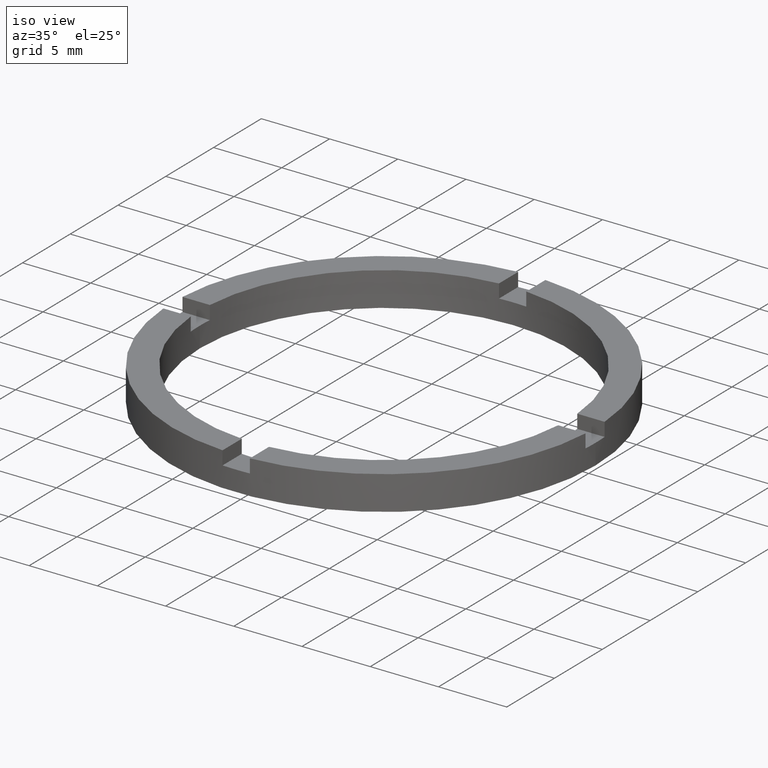
[diagram: clean part render]
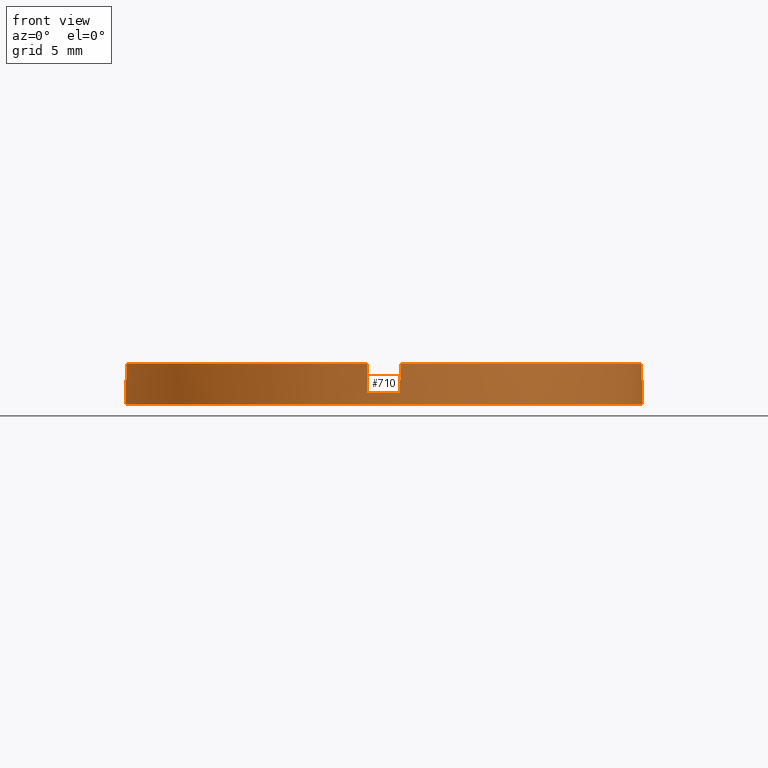
[diagram: tour spotlight — one face highlighted and labeled with its STEP entity id]
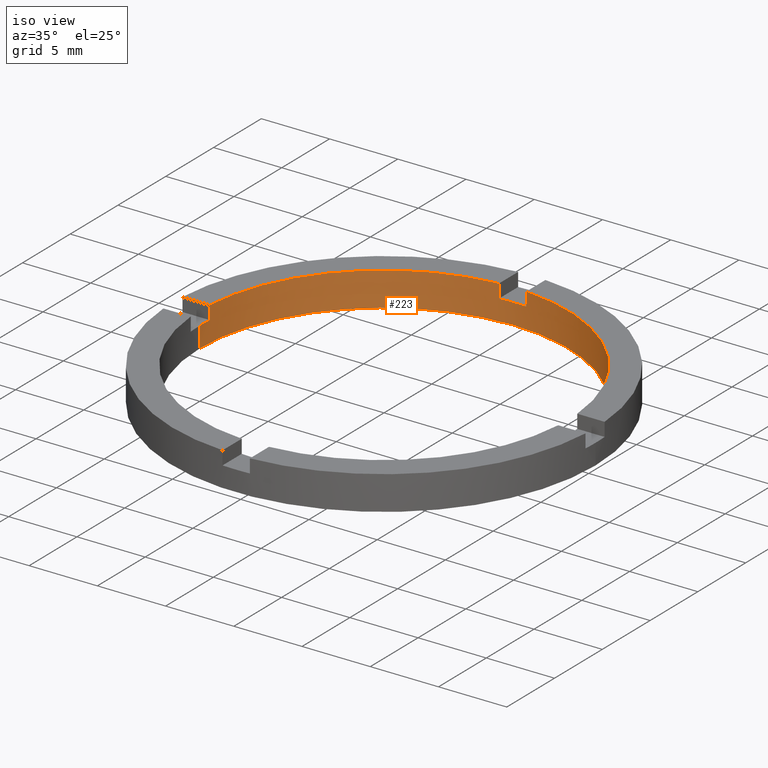
[diagram: tour spotlight — one face highlighted and labeled with its STEP entity id]
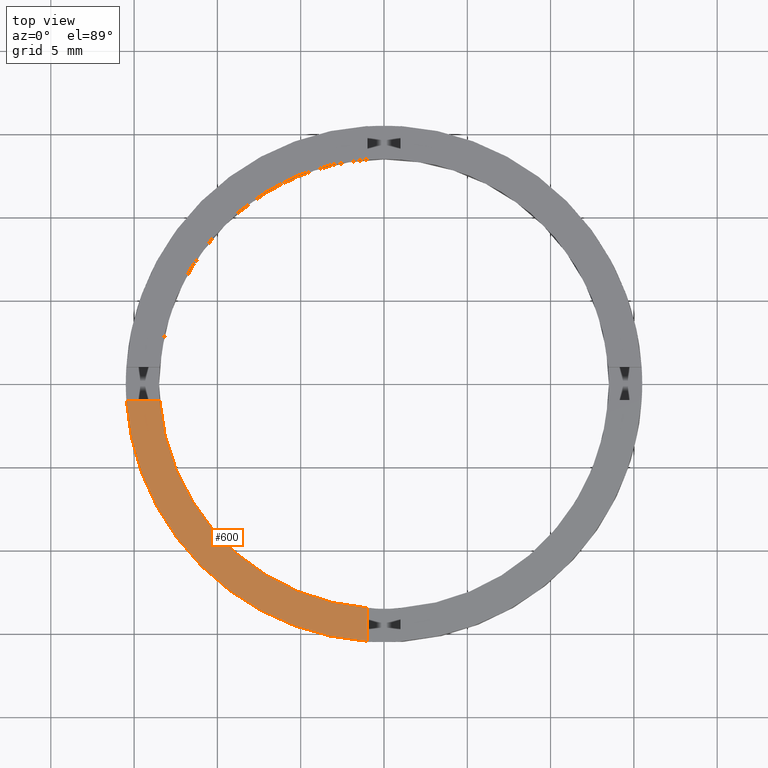
[diagram: tour spotlight — one face highlighted and labeled with its STEP entity id]
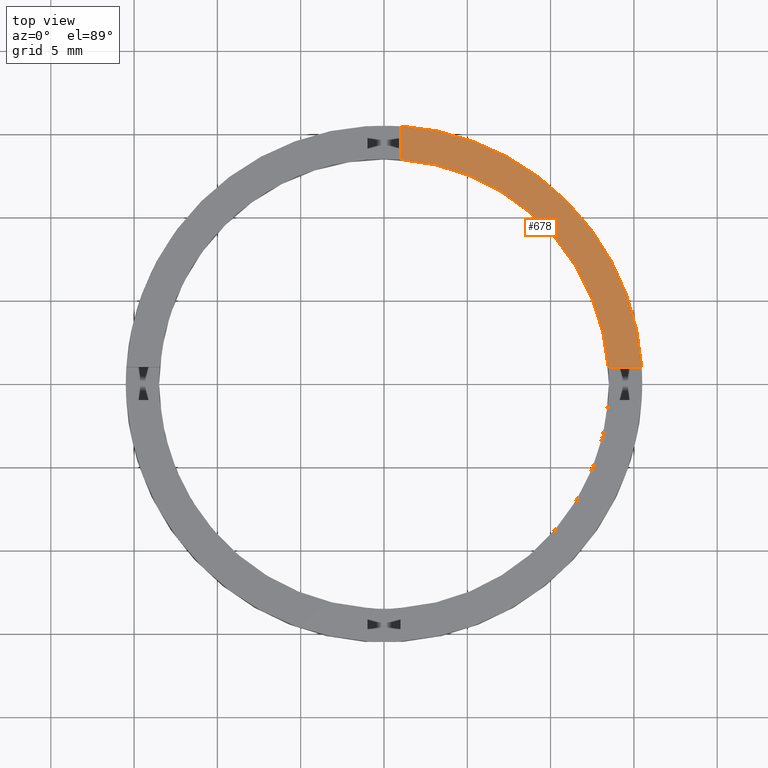
[diagram: tour spotlight — one face highlighted and labeled with its STEP entity id]
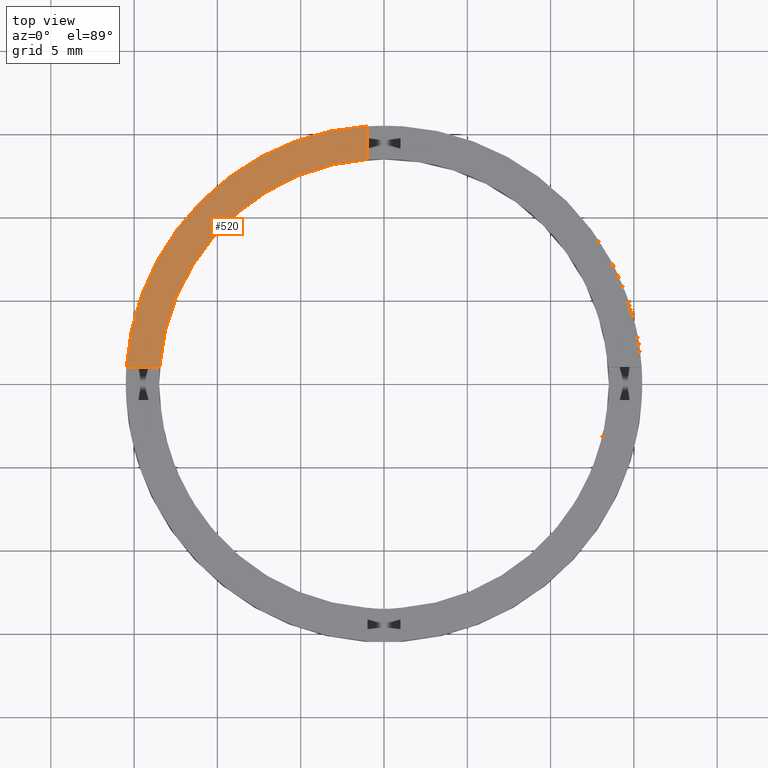
[diagram: tour spotlight — one face highlighted and labeled with its STEP entity id]
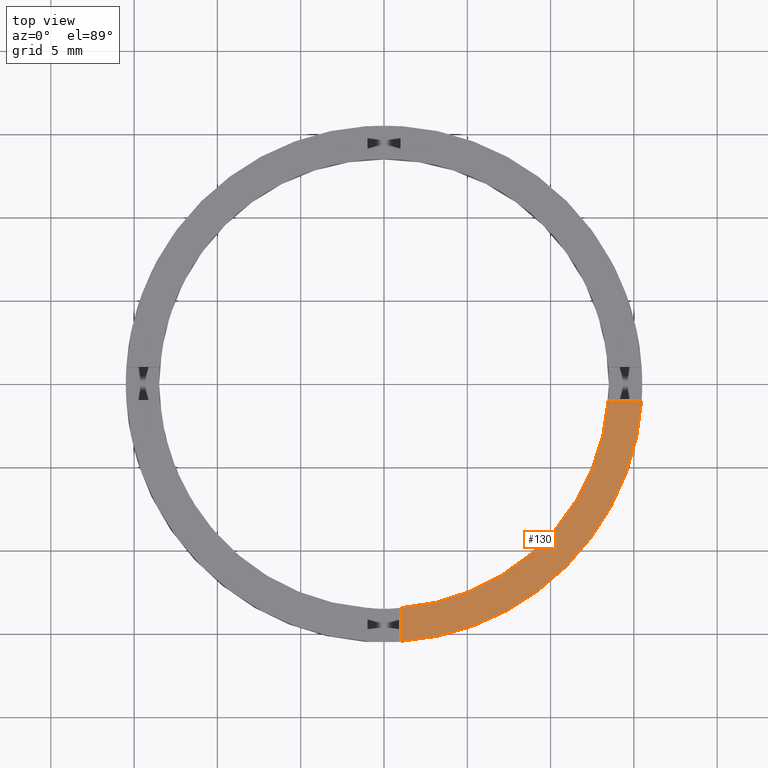
[diagram: tour spotlight — one face highlighted and labeled with its STEP entity id]
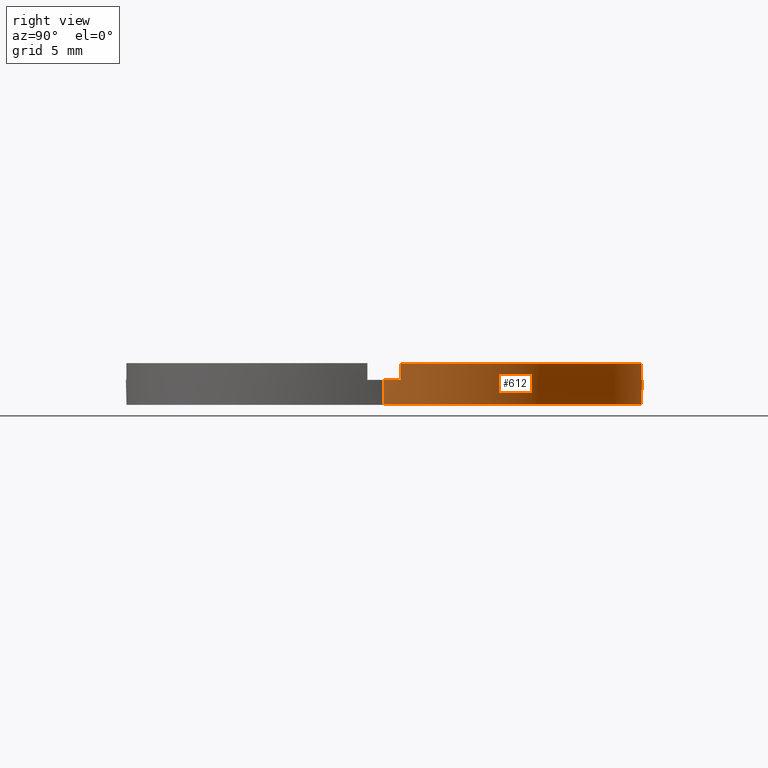
[diagram: tour spotlight — one face highlighted and labeled with its STEP entity id]
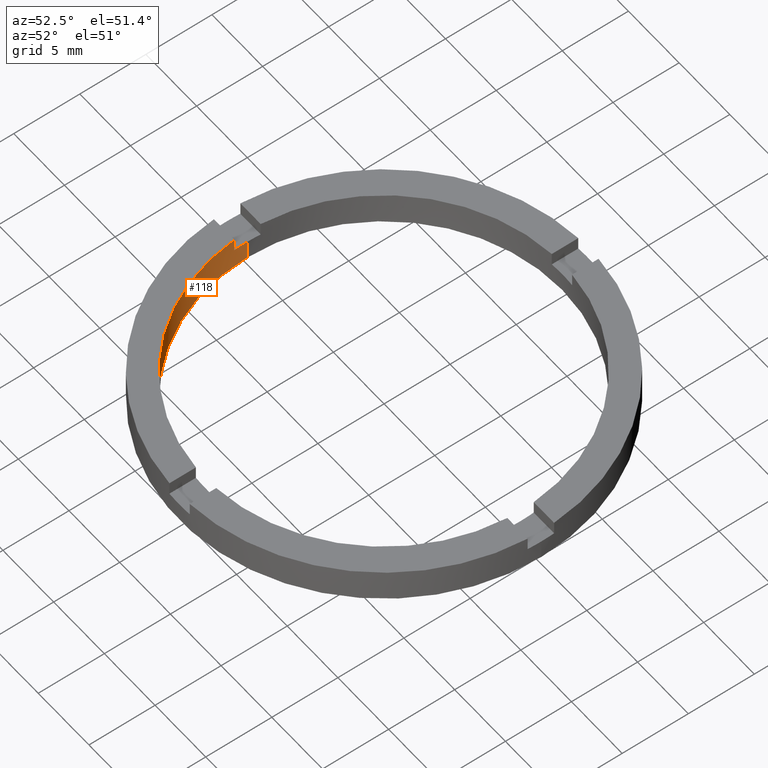
[diagram: tour spotlight — one face highlighted and labeled with its STEP entity id]
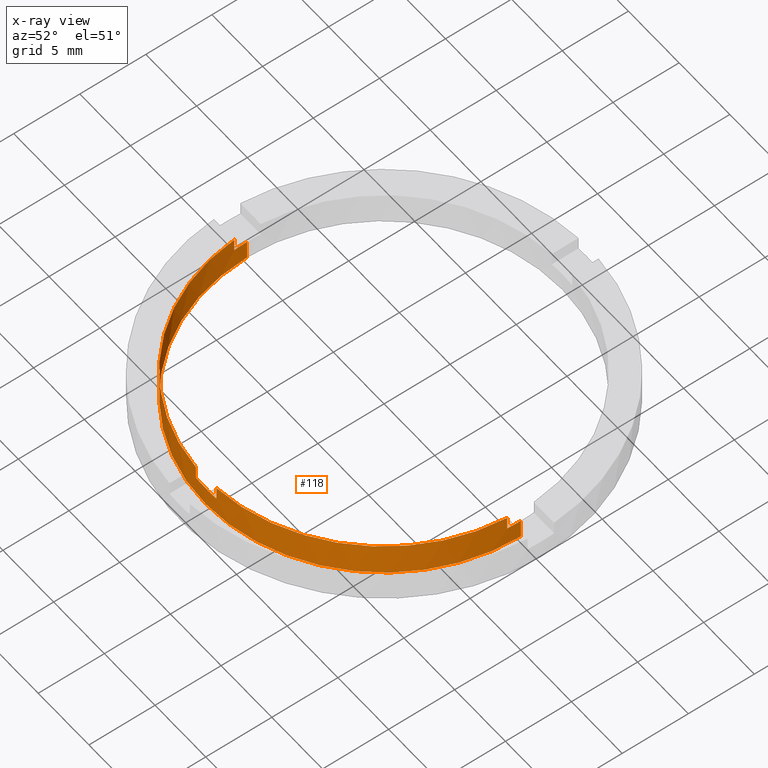
[diagram: x-ray of the same camera — body ghosted, this tour face saturated]
A machine part: a face-by-face anatomy tour. The part has 21 B-rep faces; the first image is the clean iso view, then the 8 largest visible faces are spotlighted one at a time (largest first), each with its STEP entity span.

Face 1 — front view, entity #710. In plain terms, the highlighted cylindrical surface (partial cylindrical patch) has radius 15.5 mm, axis along (-0, -0, -1).
Definition (entity closure, byte-faithful):
#15 = CARTESIAN_POINT ( 'NONE',  ( 15.46770829825800853, -1.000000000000159206, 2.500000000000000000 ) ) ;
#21 = AXIS2_PLACEMENT_3D ( 'NONE', #297, #579, #352 ) ;
#30 = AXIS2_PLACEMENT_3D ( 'NONE', #200, #254, #428 ) ;
#32 = EDGE_CURVE ( 'NONE', #67, #351, #114, .T. ) ;
#61 = CARTESIAN_POINT ( 'NONE',  ( 0.000000000000000000, 0.000000000000000000, 1.500000000000000000 ) ) ;
#67 = VERTEX_POINT ( 'NONE', #350 ) ;
#69 = CARTESIAN_POINT ( 'NONE',  ( 0.000000000000000000, 0.000000000000000000, 0.000000000000000000 ) ) ;
#74 = ORIENTED_EDGE ( 'NONE', *, *, #295, .F. ) ;
#77 = ORIENTED_EDGE ( 'NONE', *, *, #441, .F. ) ;
#98 = VERTEX_POINT ( 'NONE', #343 ) ;
#114 = LINE ( 'NONE', #116, #393 ) ;
#116 = CARTESIAN_POINT ( 'NONE',  ( -1.000000000000162759, -15.46770829825800853, 2.500000000000000000 ) ) ;
#131 = VECTOR ( 'NONE', #321, 1000.000000000000000 ) ;
#137 = EDGE_CURVE ( 'NONE', #98, #380, #269, .T. ) ;
#141 = LINE ( 'NONE', #282, #131 ) ;
#147 = VERTEX_POINT ( 'NONE', #369 ) ;
#151 = DIRECTION ( 'NONE',  ( -0.000000000000000000, 0.000000000000000000, 1.000000000000000000 ) ) ;
#167 = DIRECTION ( 'NONE',  ( 0.000000000000000000, 0.000000000000000000, 1.000000000000000000 ) ) ;
#168 = ORIENTED_EDGE ( 'NONE', *, *, #137, .T. ) ;
#174 = VERTEX_POINT ( 'NONE', #220 ) ;
#176 = LINE ( 'NONE', #367, #704 ) ;
#198 = CIRCLE ( 'NONE', #240, 15.50000000000000000 ) ;
#199 = DIRECTION ( 'NONE',  ( -0.000000000000000000, -0.000000000000000000, -1.000000000000000000 ) ) ;
#200 = CARTESIAN_POINT ( 'NONE',  ( 0.000000000000000000, 0.000000000000000000, 2.500000000000000000 ) ) ;
#201 = CARTESIAN_POINT ( 'NONE',  ( -15.50000000000000000, 0.000000000000000000, 2.500000000000000000 ) ) ;
#202 = CYLINDRICAL_SURFACE ( 'NONE', #21, 15.50000000000000000 ) ;
#220 = CARTESIAN_POINT ( 'NONE',  ( -15.46770829825801741, -1.000000000000023315, 2.500000000000000000 ) ) ;
#227 = DIRECTION ( 'NONE',  ( 1.000000000000000000, 0.000000000000000000, 0.000000000000000000 ) ) ;
#240 = AXIS2_PLACEMENT_3D ( 'NONE', #674, #312, #752 ) ;
#243 = EDGE_CURVE ( 'NONE', #450, #632, #762, .T. ) ;
#254 = DIRECTION ( 'NONE',  ( 0.000000000000000000, 0.000000000000000000, 1.000000000000000000 ) ) ;
#265 = DIRECTION ( 'NONE',  ( -0.000000000000000000, -0.000000000000000000, -1.000000000000000000 ) ) ;
#269 = LINE ( 'NONE', #201, #524 ) ;
#272 = AXIS2_PLACEMENT_3D ( 'NONE', #597, #276, #556 ) ;
#276 = DIRECTION ( 'NONE',  ( 0.000000000000000000, 0.000000000000000000, 1.000000000000000000 ) ) ;
#282 = CARTESIAN_POINT ( 'NONE',  ( 15.46770829825800853, -1.000000000000159206, 2.500000000000000000 ) ) ;
#295 = EDGE_CURVE ( 'NONE', #450, #684, #771, .T. ) ;
#297 = CARTESIAN_POINT ( 'NONE',  ( 0.000000000000000000, 0.000000000000000000, 2.500000000000000000 ) ) ;
#305 = CARTESIAN_POINT ( 'NONE',  ( 15.50000000000000000, 1.898202538678397557E-15, 0.000000000000000000 ) ) ;
#308 = CARTESIAN_POINT ( 'NONE',  ( -15.46770829825801741, -1.000000000000023315, 1.500000000000000000 ) ) ;
#312 = DIRECTION ( 'NONE',  ( 0.000000000000000000, 0.000000000000000000, 1.000000000000000000 ) ) ;
#321 = DIRECTION ( 'NONE',  ( 0.000000000000000000, 0.000000000000000000, 1.000000000000000000 ) ) ;
#322 = AXIS2_PLACEMENT_3D ( 'NONE', #61, #151, #227 ) ;
#339 = DIRECTION ( 'NONE',  ( 0.000000000000000000, 0.000000000000000000, 1.000000000000000000 ) ) ;
#341 = ORIENTED_EDGE ( 'NONE', *, *, #32, .T. ) ;
#343 = CARTESIAN_POINT ( 'NONE',  ( -15.50000000000000000, 0.000000000000000000, 1.500000000000000000 ) ) ;
#349 = AXIS2_PLACEMENT_3D ( 'NONE', #69, #167, #763 ) ;
#350 = CARTESIAN_POINT ( 'NONE',  ( -1.000000000000162759, -15.46770829825800853, 1.500000000000000000 ) ) ;
#351 = VERTEX_POINT ( 'NONE', #781 ) ;
#352 = DIRECTION ( 'NONE',  ( -1.000000000000000000, 0.000000000000000000, 0.000000000000000000 ) ) ;
#358 = ORIENTED_EDGE ( 'NONE', *, *, #709, .F. ) ;
#367 = CARTESIAN_POINT ( 'NONE',  ( 15.50000000000000000, 1.898202538678397557E-15, 2.500000000000000000 ) ) ;
#369 = CARTESIAN_POINT ( 'NONE',  ( 15.50000000000000000, 1.898202538678397557E-15, 1.500000000000000000 ) ) ;
#380 = VERTEX_POINT ( 'NONE', #467 ) ;
#392 = EDGE_CURVE ( 'NONE', #174, #351, #479, .T. ) ;
#393 = VECTOR ( 'NONE', #411, 1000.000000000000000 ) ;
#397 = ORIENTED_EDGE ( 'NONE', *, *, #720, .F. ) ;
#411 = DIRECTION ( 'NONE',  ( 0.000000000000000000, 0.000000000000000000, 1.000000000000000000 ) ) ;
#428 = DIRECTION ( 'NONE',  ( 1.000000000000000000, 0.000000000000000000, 0.000000000000000000 ) ) ;
#434 = DIRECTION ( 'NONE',  ( -0.000000000000000000, -0.000000000000000000, -1.000000000000000000 ) ) ;
#441 = EDGE_CURVE ( 'NONE', #67, #632, #735, .T. ) ;
#442 = DIRECTION ( 'NONE',  ( 1.000000000000000000, 0.000000000000000000, 0.000000000000000000 ) ) ;
#445 = VERTEX_POINT ( 'NONE', #305 ) ;
#450 = VERTEX_POINT ( 'NONE', #548 ) ;
#451 = ORIENTED_EDGE ( 'NONE', *, *, #628, .T. ) ;
#457 = CARTESIAN_POINT ( 'NONE',  ( -15.46770829825801741, -1.000000000000023315, 2.500000000000000000 ) ) ;
#458 = EDGE_CURVE ( 'NONE', #380, #445, #485, .T. ) ;
#462 = EDGE_LOOP ( 'NONE', ( #629, #397, #677, #74, #638, #77, #341, #590, #451, #358, #168, #707 ) ) ;
#467 = CARTESIAN_POINT ( 'NONE',  ( -15.50000000000000000, 0.000000000000000000, 0.000000000000000000 ) ) ;
#471 = CIRCLE ( 'NONE', #703, 15.50000000000000000 ) ;
#476 = VECTOR ( 'NONE', #434, 1000.000000000000000 ) ;
#479 = CIRCLE ( 'NONE', #272, 15.50000000000000000 ) ;
#485 = CIRCLE ( 'NONE', #349, 15.50000000000000000 ) ;
#494 = CARTESIAN_POINT ( 'NONE',  ( 15.46770829825800853, -1.000000000000159206, 1.500000000000000000 ) ) ;
#504 = VECTOR ( 'NONE', #619, 1000.000000000000000 ) ;
#524 = VECTOR ( 'NONE', #265, 1000.000000000000000 ) ;
#539 = CARTESIAN_POINT ( 'NONE',  ( 0.9999999999998371303, -15.46770829825802984, 1.500000000000000000 ) ) ;
#548 = CARTESIAN_POINT ( 'NONE',  ( 0.9999999999998371303, -15.46770829825802984, 2.500000000000000000 ) ) ;
#556 = DIRECTION ( 'NONE',  ( 1.000000000000000000, 0.000000000000000000, 0.000000000000000000 ) ) ;
#566 = CARTESIAN_POINT ( 'NONE',  ( 0.9999999999998371303, -15.46770829825802984, 2.500000000000000000 ) ) ;
#579 = DIRECTION ( 'NONE',  ( -0.000000000000000000, -0.000000000000000000, -1.000000000000000000 ) ) ;
#590 = ORIENTED_EDGE ( 'NONE', *, *, #392, .F. ) ;
#597 = CARTESIAN_POINT ( 'NONE',  ( 0.000000000000000000, 0.000000000000000000, 2.500000000000000000 ) ) ;
#605 = VERTEX_POINT ( 'NONE', #308 ) ;
#619 = DIRECTION ( 'NONE',  ( -0.000000000000000000, -0.000000000000000000, -1.000000000000000000 ) ) ;
#626 = VERTEX_POINT ( 'NONE', #494 ) ;
#628 = EDGE_CURVE ( 'NONE', #174, #605, #705, .T. ) ;
#629 = ORIENTED_EDGE ( 'NONE', *, *, #749, .F. ) ;
#632 = VERTEX_POINT ( 'NONE', #539 ) ;
#638 = ORIENTED_EDGE ( 'NONE', *, *, #243, .T. ) ;
#674 = CARTESIAN_POINT ( 'NONE',  ( 0.000000000000000000, 0.000000000000000000, 1.500000000000000000 ) ) ;
#677 = ORIENTED_EDGE ( 'NONE', *, *, #779, .T. ) ;
#684 = VERTEX_POINT ( 'NONE', #15 ) ;
#703 = AXIS2_PLACEMENT_3D ( 'NONE', #743, #339, #442 ) ;
#704 = VECTOR ( 'NONE', #199, 1000.000000000000000 ) ;
#705 = LINE ( 'NONE', #457, #476 ) ;
#707 = ORIENTED_EDGE ( 'NONE', *, *, #458, .T. ) ;
#709 = EDGE_CURVE ( 'NONE', #98, #605, #198, .T. ) ;
#710 = ADVANCED_FACE ( 'NONE', ( #721 ), #202, .T. ) ;
#720 = EDGE_CURVE ( 'NONE', #626, #147, #471, .T. ) ;
#721 = FACE_OUTER_BOUND ( 'NONE', #462, .T. ) ;
#735 = CIRCLE ( 'NONE', #322, 15.50000000000000000 ) ;
#743 = CARTESIAN_POINT ( 'NONE',  ( 0.000000000000000000, 0.000000000000000000, 1.500000000000000000 ) ) ;
#749 = EDGE_CURVE ( 'NONE', #147, #445, #176, .T. ) ;
#752 = DIRECTION ( 'NONE',  ( 1.000000000000000000, 0.000000000000000000, 0.000000000000000000 ) ) ;
#762 = LINE ( 'NONE', #566, #504 ) ;
#763 = DIRECTION ( 'NONE',  ( 1.000000000000000000, 0.000000000000000000, 0.000000000000000000 ) ) ;
#771 = CIRCLE ( 'NONE', #30, 15.50000000000000000 ) ;
#779 = EDGE_CURVE ( 'NONE', #626, #684, #141, .T. ) ;
#781 = CARTESIAN_POINT ( 'NONE',  ( -1.000000000000162759, -15.46770829825800853, 2.500000000000000000 ) ) ;

Face 2 — iso view, entity #223. In plain terms, the highlighted cylindrical surface (partial cylindrical patch) has radius 13.5 mm, axis along (-0, -0, -1).
Definition (entity closure, byte-faithful):
#5 = CARTESIAN_POINT ( 'NONE',  ( 13.50000000000000000, 1.653273178848926867E-15, 2.500000000000000000 ) ) ;
#17 = DIRECTION ( 'NONE',  ( -0.000000000000000000, -0.000000000000000000, -1.000000000000000000 ) ) ;
#23 = DIRECTION ( 'NONE',  ( -0.000000000000000000, -0.000000000000000000, -1.000000000000000000 ) ) ;
#28 = EDGE_CURVE ( 'NONE', #708, #363, #389, .T. ) ;
#39 = DIRECTION ( 'NONE',  ( -0.000000000000000000, -0.000000000000000000, -1.000000000000000000 ) ) ;
#50 = EDGE_CURVE ( 'NONE', #144, #79, #639, .T. ) ;
#52 = DIRECTION ( 'NONE',  ( 0.000000000000000000, 0.000000000000000000, 1.000000000000000000 ) ) ;
#53 = CARTESIAN_POINT ( 'NONE',  ( -13.46291201783626157, 0.9999999999999770184, 1.500000000000000000 ) ) ;
#54 = CARTESIAN_POINT ( 'NONE',  ( 0.000000000000000000, 0.000000000000000000, 1.500000000000000000 ) ) ;
#60 = AXIS2_PLACEMENT_3D ( 'NONE', #110, #103, #204 ) ;
#79 = VERTEX_POINT ( 'NONE', #173 ) ;
#85 = VERTEX_POINT ( 'NONE', #101 ) ;
#101 = CARTESIAN_POINT ( 'NONE',  ( -13.46291201783626157, 0.9999999999999770184, 2.500000000000000000 ) ) ;
#103 = DIRECTION ( 'NONE',  ( 0.000000000000000000, 0.000000000000000000, 1.000000000000000000 ) ) ;
#110 = CARTESIAN_POINT ( 'NONE',  ( 0.000000000000000000, 0.000000000000000000, 2.500000000000000000 ) ) ;
#119 = CARTESIAN_POINT ( 'NONE',  ( 0.000000000000000000, 0.000000000000000000, 0.000000000000000000 ) ) ;
#138 = ORIENTED_EDGE ( 'NONE', *, *, #353, .F. ) ;
#144 = VERTEX_POINT ( 'NONE', #53 ) ;
#145 = CARTESIAN_POINT ( 'NONE',  ( 13.50000000000000000, 1.653273178848926867E-15, 1.500000000000000000 ) ) ;
#158 = LINE ( 'NONE', #755, #646 ) ;
#163 = CIRCLE ( 'NONE', #302, 13.50000000000000000 ) ;
#171 = ORIENTED_EDGE ( 'NONE', *, *, #607, .T. ) ;
#173 = CARTESIAN_POINT ( 'NONE',  ( -13.50000000000000000, 0.000000000000000000, 1.500000000000000000 ) ) ;
#181 = ORIENTED_EDGE ( 'NONE', *, *, #621, .T. ) ;
#184 = VERTEX_POINT ( 'NONE', #145 ) ;
#191 = LINE ( 'NONE', #359, #718 ) ;
#193 = DIRECTION ( 'NONE',  ( 0.000000000000000000, 0.000000000000000000, 1.000000000000000000 ) ) ;
#204 = DIRECTION ( 'NONE',  ( 1.000000000000000000, 0.000000000000000000, 0.000000000000000000 ) ) ;
#210 = VECTOR ( 'NONE', #39, 1000.000000000000000 ) ;
#212 = DIRECTION ( 'NONE',  ( 1.000000000000000000, 0.000000000000000000, 0.000000000000000000 ) ) ;
#213 = CARTESIAN_POINT ( 'NONE',  ( -1.000000000000024869, 13.46291201783625802, 1.500000000000000000 ) ) ;
#216 = EDGE_CURVE ( 'NONE', #184, #338, #239, .T. ) ;
#217 = DIRECTION ( 'NONE',  ( 1.000000000000000000, 0.000000000000000000, 0.000000000000000000 ) ) ;
#223 = ADVANCED_FACE ( 'NONE', ( #232 ), #759, .F. ) ;
#232 = FACE_OUTER_BOUND ( 'NONE', #690, .T. ) ;
#234 = CARTESIAN_POINT ( 'NONE',  ( 13.46291201783627045, 0.9999999999998409050, 1.500000000000000000 ) ) ;
#239 = CIRCLE ( 'NONE', #725, 13.50000000000000000 ) ;
#257 = CARTESIAN_POINT ( 'NONE',  ( -1.000000000000024869, 13.46291201783625802, 2.500000000000000000 ) ) ;
#273 = DIRECTION ( 'NONE',  ( 0.000000000000000000, -0.000000000000000000, 1.000000000000000000 ) ) ;
#287 = AXIS2_PLACEMENT_3D ( 'NONE', #505, #396, #714 ) ;
#289 = CARTESIAN_POINT ( 'NONE',  ( 0.9999999999999751310, 13.46291201783626335, 2.500000000000000000 ) ) ;
#302 = AXIS2_PLACEMENT_3D ( 'NONE', #683, #52, #217 ) ;
#338 = VERTEX_POINT ( 'NONE', #234 ) ;
#353 = EDGE_CURVE ( 'NONE', #620, #400, #516, .T. ) ;
#359 = CARTESIAN_POINT ( 'NONE',  ( -13.46291201783626157, 0.9999999999999770184, 2.500000000000000000 ) ) ;
#362 = CARTESIAN_POINT ( 'NONE',  ( 0.000000000000000000, 0.000000000000000000, 1.500000000000000000 ) ) ;
#363 = VERTEX_POINT ( 'NONE', #213 ) ;
#366 = ORIENTED_EDGE ( 'NONE', *, *, #757, .F. ) ;
#371 = ORIENTED_EDGE ( 'NONE', *, *, #583, .F. ) ;
#373 = ORIENTED_EDGE ( 'NONE', *, *, #216, .T. ) ;
#389 = LINE ( 'NONE', #747, #636 ) ;
#395 = DIRECTION ( 'NONE',  ( 0.000000000000000000, 0.000000000000000000, 1.000000000000000000 ) ) ;
#396 = DIRECTION ( 'NONE',  ( -0.000000000000000000, -0.000000000000000000, -1.000000000000000000 ) ) ;
#400 = VERTEX_POINT ( 'NONE', #606 ) ;
#417 = VERTEX_POINT ( 'NONE', #758 ) ;
#421 = ORIENTED_EDGE ( 'NONE', *, *, #28, .F. ) ;
#424 = CARTESIAN_POINT ( 'NONE',  ( 0.000000000000000000, 0.000000000000000000, 1.500000000000000000 ) ) ;
#426 = CIRCLE ( 'NONE', #514, 13.50000000000000000 ) ;
#430 = ORIENTED_EDGE ( 'NONE', *, *, #50, .T. ) ;
#438 = VERTEX_POINT ( 'NONE', #454 ) ;
#454 = CARTESIAN_POINT ( 'NONE',  ( 13.50000000000000000, 1.653273178848926867E-15, 0.000000000000000000 ) ) ;
#460 = DIRECTION ( 'NONE',  ( 0.000000000000000000, 0.000000000000000000, 1.000000000000000000 ) ) ;
#463 = ORIENTED_EDGE ( 'NONE', *, *, #655, .F. ) ;
#470 = AXIS2_PLACEMENT_3D ( 'NONE', #119, #581, #652 ) ;
#492 = EDGE_CURVE ( 'NONE', #620, #363, #426, .T. ) ;
#503 = DIRECTION ( 'NONE',  ( -0.000000000000000000, -0.000000000000000000, -1.000000000000000000 ) ) ;
#505 = CARTESIAN_POINT ( 'NONE',  ( 0.000000000000000000, 0.000000000000000000, 2.500000000000000000 ) ) ;
#514 = AXIS2_PLACEMENT_3D ( 'NONE', #54, #273, #212 ) ;
#516 = LINE ( 'NONE', #289, #780 ) ;
#545 = CARTESIAN_POINT ( 'NONE',  ( 0.9999999999999751310, 13.46291201783626335, 1.500000000000000000 ) ) ;
#550 = DIRECTION ( 'NONE',  ( 1.000000000000000000, 0.000000000000000000, 0.000000000000000000 ) ) ;
#577 = AXIS2_PLACEMENT_3D ( 'NONE', #424, #641, #731 ) ;
#581 = DIRECTION ( 'NONE',  ( 0.000000000000000000, 0.000000000000000000, 1.000000000000000000 ) ) ;
#583 = EDGE_CURVE ( 'NONE', #438, #693, #682, .T. ) ;
#592 = CARTESIAN_POINT ( 'NONE',  ( -13.50000000000000000, 0.000000000000000000, 0.000000000000000000 ) ) ;
#593 = ORIENTED_EDGE ( 'NONE', *, *, #732, .T. ) ;
#606 = CARTESIAN_POINT ( 'NONE',  ( 0.9999999999999751310, 13.46291201783626335, 2.500000000000000000 ) ) ;
#607 = EDGE_CURVE ( 'NONE', #708, #85, #163, .T. ) ;
#620 = VERTEX_POINT ( 'NONE', #545 ) ;
#621 = EDGE_CURVE ( 'NONE', #417, #400, #726, .T. ) ;
#636 = VECTOR ( 'NONE', #17, 1000.000000000000000 ) ;
#639 = CIRCLE ( 'NONE', #577, 13.50000000000000000 ) ;
#641 = DIRECTION ( 'NONE',  ( 0.000000000000000000, 0.000000000000000000, 1.000000000000000000 ) ) ;
#644 = CARTESIAN_POINT ( 'NONE',  ( -13.50000000000000000, 0.000000000000000000, 2.500000000000000000 ) ) ;
#646 = VECTOR ( 'NONE', #23, 1000.000000000000000 ) ;
#650 = ORIENTED_EDGE ( 'NONE', *, *, #741, .F. ) ;
#652 = DIRECTION ( 'NONE',  ( 1.000000000000000000, 0.000000000000000000, 0.000000000000000000 ) ) ;
#655 = EDGE_CURVE ( 'NONE', #144, #85, #191, .T. ) ;
#669 = ORIENTED_EDGE ( 'NONE', *, *, #492, .T. ) ;
#682 = CIRCLE ( 'NONE', #470, 13.50000000000000000 ) ;
#683 = CARTESIAN_POINT ( 'NONE',  ( 0.000000000000000000, 0.000000000000000000, 2.500000000000000000 ) ) ;
#690 = EDGE_LOOP ( 'NONE', ( #650, #373, #366, #181, #138, #669, #421, #171, #463, #430, #593, #371 ) ) ;
#693 = VERTEX_POINT ( 'NONE', #592 ) ;
#701 = LINE ( 'NONE', #644, #722 ) ;
#708 = VERTEX_POINT ( 'NONE', #257 ) ;
#714 = DIRECTION ( 'NONE',  ( -1.000000000000000000, 0.000000000000000000, 0.000000000000000000 ) ) ;
#718 = VECTOR ( 'NONE', #193, 1000.000000000000000 ) ;
#722 = VECTOR ( 'NONE', #503, 1000.000000000000000 ) ;
#725 = AXIS2_PLACEMENT_3D ( 'NONE', #362, #460, #550 ) ;
#726 = CIRCLE ( 'NONE', #60, 13.50000000000000000 ) ;
#728 = LINE ( 'NONE', #5, #210 ) ;
#731 = DIRECTION ( 'NONE',  ( 1.000000000000000000, 0.000000000000000000, 0.000000000000000000 ) ) ;
#732 = EDGE_CURVE ( 'NONE', #79, #693, #701, .T. ) ;
#741 = EDGE_CURVE ( 'NONE', #184, #438, #728, .T. ) ;
#747 = CARTESIAN_POINT ( 'NONE',  ( -1.000000000000024869, 13.46291201783625802, 2.500000000000000000 ) ) ;
#755 = CARTESIAN_POINT ( 'NONE',  ( 13.46291201783627045, 0.9999999999998409050, 2.500000000000000000 ) ) ;
#757 = EDGE_CURVE ( 'NONE', #417, #338, #158, .T. ) ;
#758 = CARTESIAN_POINT ( 'NONE',  ( 13.46291201783627045, 0.9999999999998409050, 2.500000000000000000 ) ) ;
#759 = CYLINDRICAL_SURFACE ( 'NONE', #287, 13.50000000000000000 ) ;
#780 = VECTOR ( 'NONE', #395, 1000.000000000000000 ) ;

Face 3 — top view, entity #600. In plain terms, the highlighted planar face has unit normal (0, 0, 1).
Definition (entity closure, byte-faithful):
#24 = CARTESIAN_POINT ( 'NONE',  ( -13.46291201783625802, -1.000000000000023093, 2.500000000000000000 ) ) ;
#55 = AXIS2_PLACEMENT_3D ( 'NONE', #188, #578, #437 ) ;
#115 = EDGE_CURVE ( 'NONE', #459, #351, #280, .T. ) ;
#126 = ORIENTED_EDGE ( 'NONE', *, *, #392, .T. ) ;
#154 = VERTEX_POINT ( 'NONE', #24 ) ;
#174 = VERTEX_POINT ( 'NONE', #220 ) ;
#185 = EDGE_LOOP ( 'NONE', ( #409, #654, #354, #126 ) ) ;
#188 = CARTESIAN_POINT ( 'NONE',  ( 0.000000000000000000, 0.000000000000000000, 2.500000000000000000 ) ) ;
#209 = CARTESIAN_POINT ( 'NONE',  ( 0.000000000000000000, 0.000000000000000000, 2.500000000000000000 ) ) ;
#220 = CARTESIAN_POINT ( 'NONE',  ( -15.46770829825801741, -1.000000000000023315, 2.500000000000000000 ) ) ;
#258 = VECTOR ( 'NONE', #727, 1000.000000000000000 ) ;
#261 = DIRECTION ( 'NONE',  ( 0.000000000000000000, 0.000000000000000000, 1.000000000000000000 ) ) ;
#272 = AXIS2_PLACEMENT_3D ( 'NONE', #597, #276, #556 ) ;
#274 = VECTOR ( 'NONE', #724, 1000.000000000000000 ) ;
#276 = DIRECTION ( 'NONE',  ( 0.000000000000000000, 0.000000000000000000, 1.000000000000000000 ) ) ;
#280 = LINE ( 'NONE', #337, #274 ) ;
#291 = CARTESIAN_POINT ( 'NONE',  ( -1.000000000000162981, -13.46291201783624736, 2.500000000000000000 ) ) ;
#311 = EDGE_CURVE ( 'NONE', #154, #459, #776, .T. ) ;
#335 = EDGE_CURVE ( 'NONE', #174, #154, #777, .T. ) ;
#337 = CARTESIAN_POINT ( 'NONE',  ( -1.000000000000164091, -5.500000000000180300, 2.500000000000000000 ) ) ;
#351 = VERTEX_POINT ( 'NONE', #781 ) ;
#354 = ORIENTED_EDGE ( 'NONE', *, *, #335, .F. ) ;
#392 = EDGE_CURVE ( 'NONE', #174, #351, #479, .T. ) ;
#409 = ORIENTED_EDGE ( 'NONE', *, *, #115, .F. ) ;
#437 = DIRECTION ( 'NONE',  ( 1.000000000000000000, 0.000000000000000000, 0.000000000000000000 ) ) ;
#459 = VERTEX_POINT ( 'NONE', #291 ) ;
#479 = CIRCLE ( 'NONE', #272, 15.50000000000000000 ) ;
#507 = PLANE ( 'NONE',  #572 ) ;
#549 = DIRECTION ( 'NONE',  ( 1.000000000000000000, 0.000000000000000000, -0.000000000000000000 ) ) ;
#556 = DIRECTION ( 'NONE',  ( 1.000000000000000000, 0.000000000000000000, 0.000000000000000000 ) ) ;
#572 = AXIS2_PLACEMENT_3D ( 'NONE', #209, #261, #549 ) ;
#578 = DIRECTION ( 'NONE',  ( 0.000000000000000000, 0.000000000000000000, 1.000000000000000000 ) ) ;
#597 = CARTESIAN_POINT ( 'NONE',  ( 0.000000000000000000, 0.000000000000000000, 2.500000000000000000 ) ) ;
#600 = ADVANCED_FACE ( 'NONE', ( #667 ), #507, .T. ) ;
#633 = CARTESIAN_POINT ( 'NONE',  ( -5.500000000000185629, -1.000000000000021538, 2.500000000000000000 ) ) ;
#654 = ORIENTED_EDGE ( 'NONE', *, *, #311, .F. ) ;
#667 = FACE_OUTER_BOUND ( 'NONE', #185, .T. ) ;
#724 = DIRECTION ( 'NONE',  ( 1.301042606982605321E-16, -1.000000000000000000, 0.000000000000000000 ) ) ;
#727 = DIRECTION ( 'NONE',  ( 1.000000000000000000, 1.734723475976807094E-16, -0.000000000000000000 ) ) ;
#776 = CIRCLE ( 'NONE', #55, 13.50000000000000000 ) ;
#777 = LINE ( 'NONE', #633, #258 ) ;
#781 = CARTESIAN_POINT ( 'NONE',  ( -1.000000000000162759, -15.46770829825800853, 2.500000000000000000 ) ) ;

Face 4 — top view, entity #678. In plain terms, the highlighted planar face has unit normal (0, 0, 1).
Definition (entity closure, byte-faithful):
#25 = CARTESIAN_POINT ( 'NONE',  ( 5.499999999999994671, 0.9999999999998404610, 2.500000000000000000 ) ) ;
#60 = AXIS2_PLACEMENT_3D ( 'NONE', #110, #103, #204 ) ;
#96 = CARTESIAN_POINT ( 'NONE',  ( 0.000000000000000000, 0.000000000000000000, 2.500000000000000000 ) ) ;
#103 = DIRECTION ( 'NONE',  ( 0.000000000000000000, 0.000000000000000000, 1.000000000000000000 ) ) ;
#110 = CARTESIAN_POINT ( 'NONE',  ( 0.000000000000000000, 0.000000000000000000, 2.500000000000000000 ) ) ;
#123 = LINE ( 'NONE', #25, #649 ) ;
#143 = CIRCLE ( 'NONE', #172, 15.50000000000000000 ) ;
#164 = ORIENTED_EDGE ( 'NONE', *, *, #621, .F. ) ;
#172 = AXIS2_PLACEMENT_3D ( 'NONE', #398, #624, #772 ) ;
#204 = DIRECTION ( 'NONE',  ( 1.000000000000000000, 0.000000000000000000, 0.000000000000000000 ) ) ;
#248 = LINE ( 'NONE', #719, #518 ) ;
#252 = EDGE_CURVE ( 'NONE', #400, #596, #248, .T. ) ;
#285 = DIRECTION ( 'NONE',  ( -1.000000000000000000, -4.336808689942017736E-17, -0.000000000000000000 ) ) ;
#303 = PLANE ( 'NONE',  #546 ) ;
#327 = DIRECTION ( 'NONE',  ( 0.000000000000000000, 1.000000000000000000, 0.000000000000000000 ) ) ;
#360 = VERTEX_POINT ( 'NONE', #698 ) ;
#398 = CARTESIAN_POINT ( 'NONE',  ( 0.000000000000000000, 0.000000000000000000, 2.500000000000000000 ) ) ;
#400 = VERTEX_POINT ( 'NONE', #606 ) ;
#402 = EDGE_LOOP ( 'NONE', ( #642, #164, #616, #685 ) ) ;
#417 = VERTEX_POINT ( 'NONE', #758 ) ;
#448 = CARTESIAN_POINT ( 'NONE',  ( 0.9999999999999751310, 15.46770829825802096, 2.500000000000000000 ) ) ;
#518 = VECTOR ( 'NONE', #327, 1000.000000000000000 ) ;
#544 = EDGE_CURVE ( 'NONE', #360, #417, #123, .T. ) ;
#546 = AXIS2_PLACEMENT_3D ( 'NONE', #96, #584, #662 ) ;
#559 = EDGE_CURVE ( 'NONE', #360, #596, #143, .T. ) ;
#584 = DIRECTION ( 'NONE',  ( 0.000000000000000000, 0.000000000000000000, 1.000000000000000000 ) ) ;
#596 = VERTEX_POINT ( 'NONE', #448 ) ;
#606 = CARTESIAN_POINT ( 'NONE',  ( 0.9999999999999751310, 13.46291201783626335, 2.500000000000000000 ) ) ;
#616 = ORIENTED_EDGE ( 'NONE', *, *, #544, .F. ) ;
#621 = EDGE_CURVE ( 'NONE', #417, #400, #726, .T. ) ;
#624 = DIRECTION ( 'NONE',  ( 0.000000000000000000, 0.000000000000000000, 1.000000000000000000 ) ) ;
#642 = ORIENTED_EDGE ( 'NONE', *, *, #252, .F. ) ;
#649 = VECTOR ( 'NONE', #285, 1000.000000000000000 ) ;
#662 = DIRECTION ( 'NONE',  ( 1.000000000000000000, 0.000000000000000000, -0.000000000000000000 ) ) ;
#678 = ADVANCED_FACE ( 'NONE', ( #723 ), #303, .T. ) ;
#685 = ORIENTED_EDGE ( 'NONE', *, *, #559, .T. ) ;
#698 = CARTESIAN_POINT ( 'NONE',  ( 15.46770829825802984, 0.9999999999998409050, 2.500000000000000000 ) ) ;
#719 = CARTESIAN_POINT ( 'NONE',  ( 0.9999999999999751310, 5.500000000000000000, 2.500000000000000000 ) ) ;
#723 = FACE_OUTER_BOUND ( 'NONE', #402, .T. ) ;
#726 = CIRCLE ( 'NONE', #60, 13.50000000000000000 ) ;
#758 = CARTESIAN_POINT ( 'NONE',  ( 13.46291201783627045, 0.9999999999998409050, 2.500000000000000000 ) ) ;
#772 = DIRECTION ( 'NONE',  ( 1.000000000000000000, 0.000000000000000000, 0.000000000000000000 ) ) ;

Face 5 — top view, entity #520. In plain terms, the highlighted planar face has unit normal (0, 0, 1).
Definition (entity closure, byte-faithful):
#52 = DIRECTION ( 'NONE',  ( 0.000000000000000000, 0.000000000000000000, 1.000000000000000000 ) ) ;
#85 = VERTEX_POINT ( 'NONE', #101 ) ;
#87 = EDGE_CURVE ( 'NONE', #85, #657, #277, .T. ) ;
#101 = CARTESIAN_POINT ( 'NONE',  ( -13.46291201783626157, 0.9999999999999770184, 2.500000000000000000 ) ) ;
#163 = CIRCLE ( 'NONE', #302, 13.50000000000000000 ) ;
#180 = EDGE_CURVE ( 'NONE', #346, #657, #271, .T. ) ;
#189 = ORIENTED_EDGE ( 'NONE', *, *, #773, .F. ) ;
#192 = ORIENTED_EDGE ( 'NONE', *, *, #607, .F. ) ;
#206 = AXIS2_PLACEMENT_3D ( 'NONE', #309, #603, #268 ) ;
#217 = DIRECTION ( 'NONE',  ( 1.000000000000000000, 0.000000000000000000, 0.000000000000000000 ) ) ;
#225 = DIRECTION ( 'NONE',  ( -0.000000000000000000, -1.000000000000000000, -0.000000000000000000 ) ) ;
#246 = CARTESIAN_POINT ( 'NONE',  ( -15.46770829825802096, 0.9999999999999767963, 2.500000000000000000 ) ) ;
#257 = CARTESIAN_POINT ( 'NONE',  ( -1.000000000000024869, 13.46291201783625802, 2.500000000000000000 ) ) ;
#268 = DIRECTION ( 'NONE',  ( 1.000000000000000000, 0.000000000000000000, -0.000000000000000000 ) ) ;
#271 = CIRCLE ( 'NONE', #648, 15.50000000000000000 ) ;
#277 = LINE ( 'NONE', #498, #284 ) ;
#284 = VECTOR ( 'NONE', #333, 1000.000000000000000 ) ;
#302 = AXIS2_PLACEMENT_3D ( 'NONE', #683, #52, #217 ) ;
#309 = CARTESIAN_POINT ( 'NONE',  ( 0.000000000000000000, 0.000000000000000000, 2.500000000000000000 ) ) ;
#333 = DIRECTION ( 'NONE',  ( -1.000000000000000000, -1.734723475976807094E-16, 0.000000000000000000 ) ) ;
#346 = VERTEX_POINT ( 'NONE', #487 ) ;
#348 = EDGE_LOOP ( 'NONE', ( #189, #355, #614, #192 ) ) ;
#355 = ORIENTED_EDGE ( 'NONE', *, *, #180, .T. ) ;
#401 = VECTOR ( 'NONE', #225, 1000.000000000000000 ) ;
#469 = PLANE ( 'NONE',  #206 ) ;
#487 = CARTESIAN_POINT ( 'NONE',  ( -1.000000000000024869, 15.46770829825801741, 2.500000000000000000 ) ) ;
#498 = CARTESIAN_POINT ( 'NONE',  ( -5.500000000000185629, 0.9999999999999785727, 2.500000000000000000 ) ) ;
#520 = ADVANCED_FACE ( 'NONE', ( #645 ), #469, .T. ) ;
#554 = CARTESIAN_POINT ( 'NONE',  ( -1.000000000000024869, 5.500000000000000000, 2.500000000000000000 ) ) ;
#585 = CARTESIAN_POINT ( 'NONE',  ( 0.000000000000000000, 0.000000000000000000, 2.500000000000000000 ) ) ;
#603 = DIRECTION ( 'NONE',  ( 0.000000000000000000, 0.000000000000000000, 1.000000000000000000 ) ) ;
#607 = EDGE_CURVE ( 'NONE', #708, #85, #163, .T. ) ;
#614 = ORIENTED_EDGE ( 'NONE', *, *, #87, .F. ) ;
#645 = FACE_OUTER_BOUND ( 'NONE', #348, .T. ) ;
#648 = AXIS2_PLACEMENT_3D ( 'NONE', #585, #760, #756 ) ;
#657 = VERTEX_POINT ( 'NONE', #246 ) ;
#676 = LINE ( 'NONE', #554, #401 ) ;
#683 = CARTESIAN_POINT ( 'NONE',  ( 0.000000000000000000, 0.000000000000000000, 2.500000000000000000 ) ) ;
#708 = VERTEX_POINT ( 'NONE', #257 ) ;
#756 = DIRECTION ( 'NONE',  ( 1.000000000000000000, 0.000000000000000000, 0.000000000000000000 ) ) ;
#760 = DIRECTION ( 'NONE',  ( 0.000000000000000000, 0.000000000000000000, 1.000000000000000000 ) ) ;
#773 = EDGE_CURVE ( 'NONE', #346, #708, #676, .T. ) ;

Face 6 — top view, entity #130. In plain terms, the highlighted planar face has unit normal (0, 0, 1).
Definition (entity closure, byte-faithful):
#12 = CARTESIAN_POINT ( 'NONE',  ( 13.46291201783624736, -1.000000000000159206, 2.500000000000000000 ) ) ;
#15 = CARTESIAN_POINT ( 'NONE',  ( 15.46770829825800853, -1.000000000000159206, 2.500000000000000000 ) ) ;
#30 = AXIS2_PLACEMENT_3D ( 'NONE', #200, #254, #428 ) ;
#88 = ORIENTED_EDGE ( 'NONE', *, *, #295, .T. ) ;
#129 = ORIENTED_EDGE ( 'NONE', *, *, #532, .F. ) ;
#130 = ADVANCED_FACE ( 'NONE', ( #523 ), #540, .T. ) ;
#155 = ORIENTED_EDGE ( 'NONE', *, *, #673, .F. ) ;
#161 = CARTESIAN_POINT ( 'NONE',  ( 5.499999999999994671, -1.000000000000159650, 2.500000000000000000 ) ) ;
#200 = CARTESIAN_POINT ( 'NONE',  ( 0.000000000000000000, 0.000000000000000000, 2.500000000000000000 ) ) ;
#208 = VECTOR ( 'NONE', #250, 1000.000000000000000 ) ;
#245 = LINE ( 'NONE', #161, #506 ) ;
#250 = DIRECTION ( 'NONE',  ( -1.301042606982605321E-16, 1.000000000000000000, -0.000000000000000000 ) ) ;
#251 = EDGE_CURVE ( 'NONE', #413, #684, #245, .T. ) ;
#254 = DIRECTION ( 'NONE',  ( 0.000000000000000000, 0.000000000000000000, 1.000000000000000000 ) ) ;
#290 = DIRECTION ( 'NONE',  ( 1.000000000000000000, 4.336808689942017736E-17, 0.000000000000000000 ) ) ;
#295 = EDGE_CURVE ( 'NONE', #450, #684, #771, .T. ) ;
#342 = EDGE_LOOP ( 'NONE', ( #589, #129, #155, #88 ) ) ;
#370 = DIRECTION ( 'NONE',  ( 1.000000000000000000, 0.000000000000000000, 0.000000000000000000 ) ) ;
#413 = VERTEX_POINT ( 'NONE', #12 ) ;
#428 = DIRECTION ( 'NONE',  ( 1.000000000000000000, 0.000000000000000000, 0.000000000000000000 ) ) ;
#449 = LINE ( 'NONE', #464, #208 ) ;
#450 = VERTEX_POINT ( 'NONE', #548 ) ;
#464 = CARTESIAN_POINT ( 'NONE',  ( 0.9999999999998359090, -5.500000000000180300, 2.500000000000000000 ) ) ;
#491 = CARTESIAN_POINT ( 'NONE',  ( 0.9999999999998369082, -13.46291201783627045, 2.500000000000000000 ) ) ;
#506 = VECTOR ( 'NONE', #290, 1000.000000000000000 ) ;
#510 = DIRECTION ( 'NONE',  ( 0.000000000000000000, 0.000000000000000000, 1.000000000000000000 ) ) ;
#523 = FACE_OUTER_BOUND ( 'NONE', #342, .T. ) ;
#532 = EDGE_CURVE ( 'NONE', #625, #413, #658, .T. ) ;
#540 = PLANE ( 'NONE',  #551 ) ;
#548 = CARTESIAN_POINT ( 'NONE',  ( 0.9999999999998371303, -15.46770829825802984, 2.500000000000000000 ) ) ;
#551 = AXIS2_PLACEMENT_3D ( 'NONE', #580, #651, #739 ) ;
#580 = CARTESIAN_POINT ( 'NONE',  ( 0.000000000000000000, 0.000000000000000000, 2.500000000000000000 ) ) ;
#589 = ORIENTED_EDGE ( 'NONE', *, *, #251, .F. ) ;
#625 = VERTEX_POINT ( 'NONE', #491 ) ;
#630 = AXIS2_PLACEMENT_3D ( 'NONE', #745, #510, #370 ) ;
#651 = DIRECTION ( 'NONE',  ( 0.000000000000000000, 0.000000000000000000, 1.000000000000000000 ) ) ;
#658 = CIRCLE ( 'NONE', #630, 13.50000000000000000 ) ;
#673 = EDGE_CURVE ( 'NONE', #450, #625, #449, .T. ) ;
#684 = VERTEX_POINT ( 'NONE', #15 ) ;
#739 = DIRECTION ( 'NONE',  ( 1.000000000000000000, 0.000000000000000000, -0.000000000000000000 ) ) ;
#745 = CARTESIAN_POINT ( 'NONE',  ( 0.000000000000000000, 0.000000000000000000, 2.500000000000000000 ) ) ;
#771 = CIRCLE ( 'NONE', #30, 15.50000000000000000 ) ;

Face 7 — right view, entity #612. In plain terms, the highlighted cylindrical surface (partial cylindrical patch) has radius 15.5 mm, axis along (-0, -0, -1).
Definition (entity closure, byte-faithful):
#2 = VECTOR ( 'NONE', #37, 1000.000000000000000 ) ;
#3 = CARTESIAN_POINT ( 'NONE',  ( -1.000000000000024869, 15.46770829825801741, 2.500000000000000000 ) ) ;
#4 = VECTOR ( 'NONE', #183, 1000.000000000000000 ) ;
#8 = DIRECTION ( 'NONE',  ( -0.000000000000000000, -0.000000000000000000, -1.000000000000000000 ) ) ;
#9 = LINE ( 'NONE', #3, #2 ) ;
#14 = AXIS2_PLACEMENT_3D ( 'NONE', #765, #489, #481 ) ;
#20 = CARTESIAN_POINT ( 'NONE',  ( -15.46770829825802096, 0.9999999999999767963, 1.500000000000000000 ) ) ;
#37 = DIRECTION ( 'NONE',  ( -0.000000000000000000, -0.000000000000000000, -1.000000000000000000 ) ) ;
#41 = DIRECTION ( 'NONE',  ( -1.000000000000000000, 0.000000000000000000, 0.000000000000000000 ) ) ;
#49 = CARTESIAN_POINT ( 'NONE',  ( 0.000000000000000000, 0.000000000000000000, 0.000000000000000000 ) ) ;
#73 = EDGE_CURVE ( 'NONE', #453, #596, #266, .T. ) ;
#80 = ORIENTED_EDGE ( 'NONE', *, *, #263, .T. ) ;
#86 = VERTEX_POINT ( 'NONE', #197 ) ;
#89 = ORIENTED_EDGE ( 'NONE', *, *, #122, .T. ) ;
#98 = VERTEX_POINT ( 'NONE', #343 ) ;
#99 = CARTESIAN_POINT ( 'NONE',  ( 0.000000000000000000, 0.000000000000000000, 1.500000000000000000 ) ) ;
#104 = AXIS2_PLACEMENT_3D ( 'NONE', #49, #748, #499 ) ;
#122 = EDGE_CURVE ( 'NONE', #346, #86, #9, .T. ) ;
#127 = DIRECTION ( 'NONE',  ( 0.000000000000000000, 0.000000000000000000, 1.000000000000000000 ) ) ;
#132 = ORIENTED_EDGE ( 'NONE', *, *, #753, .F. ) ;
#137 = EDGE_CURVE ( 'NONE', #98, #380, #269, .T. ) ;
#142 = ORIENTED_EDGE ( 'NONE', *, *, #304, .F. ) ;
#143 = CIRCLE ( 'NONE', #172, 15.50000000000000000 ) ;
#147 = VERTEX_POINT ( 'NONE', #369 ) ;
#170 = ORIENTED_EDGE ( 'NONE', *, *, #292, .F. ) ;
#172 = AXIS2_PLACEMENT_3D ( 'NONE', #398, #624, #772 ) ;
#176 = LINE ( 'NONE', #367, #704 ) ;
#180 = EDGE_CURVE ( 'NONE', #346, #657, #271, .T. ) ;
#182 = ORIENTED_EDGE ( 'NONE', *, *, #137, .F. ) ;
#183 = DIRECTION ( 'NONE',  ( 0.000000000000000000, 0.000000000000000000, 1.000000000000000000 ) ) ;
#186 = VERTEX_POINT ( 'NONE', #390 ) ;
#190 = CARTESIAN_POINT ( 'NONE',  ( 0.9999999999999751310, 15.46770829825802096, 2.500000000000000000 ) ) ;
#197 = CARTESIAN_POINT ( 'NONE',  ( -1.000000000000024869, 15.46770829825801741, 1.500000000000000000 ) ) ;
#199 = DIRECTION ( 'NONE',  ( -0.000000000000000000, -0.000000000000000000, -1.000000000000000000 ) ) ;
#201 = CARTESIAN_POINT ( 'NONE',  ( -15.50000000000000000, 0.000000000000000000, 2.500000000000000000 ) ) ;
#205 = CYLINDRICAL_SURFACE ( 'NONE', #281, 15.50000000000000000 ) ;
#242 = LINE ( 'NONE', #766, #253 ) ;
#246 = CARTESIAN_POINT ( 'NONE',  ( -15.46770829825802096, 0.9999999999999767963, 2.500000000000000000 ) ) ;
#253 = VECTOR ( 'NONE', #347, 1000.000000000000000 ) ;
#263 = EDGE_CURVE ( 'NONE', #360, #186, #242, .T. ) ;
#264 = CARTESIAN_POINT ( 'NONE',  ( 0.000000000000000000, 0.000000000000000000, 2.500000000000000000 ) ) ;
#265 = DIRECTION ( 'NONE',  ( -0.000000000000000000, -0.000000000000000000, -1.000000000000000000 ) ) ;
#266 = LINE ( 'NONE', #190, #4 ) ;
#269 = LINE ( 'NONE', #201, #524 ) ;
#271 = CIRCLE ( 'NONE', #648, 15.50000000000000000 ) ;
#281 = AXIS2_PLACEMENT_3D ( 'NONE', #264, #8, #41 ) ;
#292 = EDGE_CURVE ( 'NONE', #631, #98, #502, .T. ) ;
#301 = DIRECTION ( 'NONE',  ( 1.000000000000000000, 0.000000000000000000, 0.000000000000000000 ) ) ;
#304 = EDGE_CURVE ( 'NONE', #453, #86, #501, .T. ) ;
#305 = CARTESIAN_POINT ( 'NONE',  ( 15.50000000000000000, 1.898202538678397557E-15, 0.000000000000000000 ) ) ;
#331 = AXIS2_PLACEMENT_3D ( 'NONE', #468, #127, #509 ) ;
#343 = CARTESIAN_POINT ( 'NONE',  ( -15.50000000000000000, 0.000000000000000000, 1.500000000000000000 ) ) ;
#344 = ORIENTED_EDGE ( 'NONE', *, *, #561, .T. ) ;
#346 = VERTEX_POINT ( 'NONE', #487 ) ;
#347 = DIRECTION ( 'NONE',  ( -0.000000000000000000, -0.000000000000000000, -1.000000000000000000 ) ) ;
#360 = VERTEX_POINT ( 'NONE', #698 ) ;
#365 = ORIENTED_EDGE ( 'NONE', *, *, #559, .F. ) ;
#367 = CARTESIAN_POINT ( 'NONE',  ( 15.50000000000000000, 1.898202538678397557E-15, 2.500000000000000000 ) ) ;
#369 = CARTESIAN_POINT ( 'NONE',  ( 15.50000000000000000, 1.898202538678397557E-15, 1.500000000000000000 ) ) ;
#372 = DIRECTION ( 'NONE',  ( 0.000000000000000000, 0.000000000000000000, 1.000000000000000000 ) ) ;
#377 = EDGE_CURVE ( 'NONE', #631, #657, #478, .T. ) ;
#378 = CARTESIAN_POINT ( 'NONE',  ( -15.46770829825802096, 0.9999999999999767963, 2.500000000000000000 ) ) ;
#380 = VERTEX_POINT ( 'NONE', #467 ) ;
#390 = CARTESIAN_POINT ( 'NONE',  ( 15.46770829825802984, 0.9999999999998409050, 1.500000000000000000 ) ) ;
#398 = CARTESIAN_POINT ( 'NONE',  ( 0.000000000000000000, 0.000000000000000000, 2.500000000000000000 ) ) ;
#420 = ORIENTED_EDGE ( 'NONE', *, *, #180, .F. ) ;
#425 = CIRCLE ( 'NONE', #331, 15.50000000000000000 ) ;
#431 = CIRCLE ( 'NONE', #104, 15.50000000000000000 ) ;
#445 = VERTEX_POINT ( 'NONE', #305 ) ;
#446 = ORIENTED_EDGE ( 'NONE', *, *, #749, .T. ) ;
#448 = CARTESIAN_POINT ( 'NONE',  ( 0.9999999999999751310, 15.46770829825802096, 2.500000000000000000 ) ) ;
#453 = VERTEX_POINT ( 'NONE', #586 ) ;
#467 = CARTESIAN_POINT ( 'NONE',  ( -15.50000000000000000, 0.000000000000000000, 0.000000000000000000 ) ) ;
#468 = CARTESIAN_POINT ( 'NONE',  ( 0.000000000000000000, 0.000000000000000000, 1.500000000000000000 ) ) ;
#478 = LINE ( 'NONE', #378, #734 ) ;
#481 = DIRECTION ( 'NONE',  ( 1.000000000000000000, 0.000000000000000000, 0.000000000000000000 ) ) ;
#487 = CARTESIAN_POINT ( 'NONE',  ( -1.000000000000024869, 15.46770829825801741, 2.500000000000000000 ) ) ;
#489 = DIRECTION ( 'NONE',  ( 0.000000000000000000, -0.000000000000000000, 1.000000000000000000 ) ) ;
#499 = DIRECTION ( 'NONE',  ( 1.000000000000000000, 0.000000000000000000, 0.000000000000000000 ) ) ;
#501 = CIRCLE ( 'NONE', #14, 15.50000000000000000 ) ;
#502 = CIRCLE ( 'NONE', #526, 15.50000000000000000 ) ;
#509 = DIRECTION ( 'NONE',  ( 1.000000000000000000, 0.000000000000000000, 0.000000000000000000 ) ) ;
#524 = VECTOR ( 'NONE', #265, 1000.000000000000000 ) ;
#526 = AXIS2_PLACEMENT_3D ( 'NONE', #99, #582, #301 ) ;
#559 = EDGE_CURVE ( 'NONE', #360, #596, #143, .T. ) ;
#561 = EDGE_CURVE ( 'NONE', #445, #380, #431, .T. ) ;
#582 = DIRECTION ( 'NONE',  ( 0.000000000000000000, 0.000000000000000000, 1.000000000000000000 ) ) ;
#585 = CARTESIAN_POINT ( 'NONE',  ( 0.000000000000000000, 0.000000000000000000, 2.500000000000000000 ) ) ;
#586 = CARTESIAN_POINT ( 'NONE',  ( 0.9999999999999751310, 15.46770829825802096, 1.500000000000000000 ) ) ;
#596 = VERTEX_POINT ( 'NONE', #448 ) ;
#610 = EDGE_LOOP ( 'NONE', ( #132, #446, #344, #182, #170, #659, #420, #89, #142, #617, #365, #80 ) ) ;
#612 = ADVANCED_FACE ( 'NONE', ( #717 ), #205, .T. ) ;
#617 = ORIENTED_EDGE ( 'NONE', *, *, #73, .T. ) ;
#624 = DIRECTION ( 'NONE',  ( 0.000000000000000000, 0.000000000000000000, 1.000000000000000000 ) ) ;
#631 = VERTEX_POINT ( 'NONE', #20 ) ;
#648 = AXIS2_PLACEMENT_3D ( 'NONE', #585, #760, #756 ) ;
#657 = VERTEX_POINT ( 'NONE', #246 ) ;
#659 = ORIENTED_EDGE ( 'NONE', *, *, #377, .T. ) ;
#698 = CARTESIAN_POINT ( 'NONE',  ( 15.46770829825802984, 0.9999999999998409050, 2.500000000000000000 ) ) ;
#704 = VECTOR ( 'NONE', #199, 1000.000000000000000 ) ;
#717 = FACE_OUTER_BOUND ( 'NONE', #610, .T. ) ;
#734 = VECTOR ( 'NONE', #372, 1000.000000000000000 ) ;
#748 = DIRECTION ( 'NONE',  ( 0.000000000000000000, 0.000000000000000000, 1.000000000000000000 ) ) ;
#749 = EDGE_CURVE ( 'NONE', #147, #445, #176, .T. ) ;
#753 = EDGE_CURVE ( 'NONE', #147, #186, #425, .T. ) ;
#756 = DIRECTION ( 'NONE',  ( 1.000000000000000000, 0.000000000000000000, 0.000000000000000000 ) ) ;
#760 = DIRECTION ( 'NONE',  ( 0.000000000000000000, 0.000000000000000000, 1.000000000000000000 ) ) ;
#765 = CARTESIAN_POINT ( 'NONE',  ( 0.000000000000000000, 0.000000000000000000, 1.500000000000000000 ) ) ;
#766 = CARTESIAN_POINT ( 'NONE',  ( 15.46770829825802984, 0.9999999999998409050, 2.500000000000000000 ) ) ;
#772 = DIRECTION ( 'NONE',  ( 1.000000000000000000, 0.000000000000000000, 0.000000000000000000 ) ) ;

Face 8 — auxiliary view, entity #118. An x-ray twin of the same camera follows (body ghosted, this face saturated) — the face is partly hidden behind the body. In plain terms, the highlighted cylindrical surface (partial cylindrical patch) has radius 13.5 mm, axis along (-0, -0, -1).
Definition (entity closure, byte-faithful):
#5 = CARTESIAN_POINT ( 'NONE',  ( 13.50000000000000000, 1.653273178848926867E-15, 2.500000000000000000 ) ) ;
#6 = CIRCLE ( 'NONE', #447, 13.50000000000000000 ) ;
#11 = LINE ( 'NONE', #575, #534 ) ;
#12 = CARTESIAN_POINT ( 'NONE',  ( 13.46291201783624736, -1.000000000000159206, 2.500000000000000000 ) ) ;
#13 = FACE_OUTER_BOUND ( 'NONE', #340, .T. ) ;
#16 = DIRECTION ( 'NONE',  ( 1.000000000000000000, 0.000000000000000000, 0.000000000000000000 ) ) ;
#22 = DIRECTION ( 'NONE',  ( 0.000000000000000000, 0.000000000000000000, 1.000000000000000000 ) ) ;
#24 = CARTESIAN_POINT ( 'NONE',  ( -13.46291201783625802, -1.000000000000023093, 2.500000000000000000 ) ) ;
#39 = DIRECTION ( 'NONE',  ( -0.000000000000000000, -0.000000000000000000, -1.000000000000000000 ) ) ;
#55 = AXIS2_PLACEMENT_3D ( 'NONE', #188, #578, #437 ) ;
#58 = CARTESIAN_POINT ( 'NONE',  ( 0.000000000000000000, 0.000000000000000000, 0.000000000000000000 ) ) ;
#59 = DIRECTION ( 'NONE',  ( 0.000000000000000000, 0.000000000000000000, 1.000000000000000000 ) ) ;
#79 = VERTEX_POINT ( 'NONE', #173 ) ;
#90 = ORIENTED_EDGE ( 'NONE', *, *, #475, .T. ) ;
#102 = ORIENTED_EDGE ( 'NONE', *, *, #517, .F. ) ;
#118 = ADVANCED_FACE ( 'NONE', ( #13 ), #531, .F. ) ;
#120 = DIRECTION ( 'NONE',  ( 0.000000000000000000, 0.000000000000000000, 1.000000000000000000 ) ) ;
#125 = EDGE_CURVE ( 'NONE', #187, #413, #11, .T. ) ;
#145 = CARTESIAN_POINT ( 'NONE',  ( 13.50000000000000000, 1.653273178848926867E-15, 1.500000000000000000 ) ) ;
#146 = ORIENTED_EDGE ( 'NONE', *, *, #741, .T. ) ;
#148 = ORIENTED_EDGE ( 'NONE', *, *, #532, .T. ) ;
#154 = VERTEX_POINT ( 'NONE', #24 ) ;
#166 = ORIENTED_EDGE ( 'NONE', *, *, #388, .F. ) ;
#169 = EDGE_CURVE ( 'NONE', #693, #438, #6, .T. ) ;
#173 = CARTESIAN_POINT ( 'NONE',  ( -13.50000000000000000, 0.000000000000000000, 1.500000000000000000 ) ) ;
#177 = VERTEX_POINT ( 'NONE', #694 ) ;
#184 = VERTEX_POINT ( 'NONE', #145 ) ;
#187 = VERTEX_POINT ( 'NONE', #283 ) ;
#188 = CARTESIAN_POINT ( 'NONE',  ( 0.000000000000000000, 0.000000000000000000, 2.500000000000000000 ) ) ;
#210 = VECTOR ( 'NONE', #39, 1000.000000000000000 ) ;
#221 = DIRECTION ( 'NONE',  ( -0.000000000000000000, -0.000000000000000000, -1.000000000000000000 ) ) ;
#222 = VECTOR ( 'NONE', #22, 1000.000000000000000 ) ;
#241 = CARTESIAN_POINT ( 'NONE',  ( 0.000000000000000000, 0.000000000000000000, 2.500000000000000000 ) ) ;
#247 = AXIS2_PLACEMENT_3D ( 'NONE', #241, #490, #537 ) ;
#262 = DIRECTION ( 'NONE',  ( 1.000000000000000000, 0.000000000000000000, 0.000000000000000000 ) ) ;
#283 = CARTESIAN_POINT ( 'NONE',  ( 13.46291201783624736, -1.000000000000159206, 1.500000000000000000 ) ) ;
#291 = CARTESIAN_POINT ( 'NONE',  ( -1.000000000000162981, -13.46291201783624736, 2.500000000000000000 ) ) ;
#300 = CARTESIAN_POINT ( 'NONE',  ( -13.46291201783625802, -1.000000000000023093, 1.500000000000000000 ) ) ;
#311 = EDGE_CURVE ( 'NONE', #154, #459, #776, .T. ) ;
#317 = DIRECTION ( 'NONE',  ( -0.000000000000000000, -0.000000000000000000, -1.000000000000000000 ) ) ;
#325 = CARTESIAN_POINT ( 'NONE',  ( 0.9999999999998369082, -13.46291201783627045, 1.500000000000000000 ) ) ;
#340 = EDGE_LOOP ( 'NONE', ( #90, #146, #627, #702, #386, #102, #661, #166, #618, #594, #148, #713 ) ) ;
#370 = DIRECTION ( 'NONE',  ( 1.000000000000000000, 0.000000000000000000, 0.000000000000000000 ) ) ;
#386 = ORIENTED_EDGE ( 'NONE', *, *, #553, .T. ) ;
#388 = EDGE_CURVE ( 'NONE', #177, #459, #484, .T. ) ;
#413 = VERTEX_POINT ( 'NONE', #12 ) ;
#437 = DIRECTION ( 'NONE',  ( 1.000000000000000000, 0.000000000000000000, 0.000000000000000000 ) ) ;
#438 = VERTEX_POINT ( 'NONE', #454 ) ;
#447 = AXIS2_PLACEMENT_3D ( 'NONE', #58, #602, #16 ) ;
#454 = CARTESIAN_POINT ( 'NONE',  ( 13.50000000000000000, 1.653273178848926867E-15, 0.000000000000000000 ) ) ;
#456 = VERTEX_POINT ( 'NONE', #325 ) ;
#459 = VERTEX_POINT ( 'NONE', #291 ) ;
#461 = CARTESIAN_POINT ( 'NONE',  ( 0.9999999999998369082, -13.46291201783627045, 2.500000000000000000 ) ) ;
#465 = DIRECTION ( 'NONE',  ( -0.000000000000000000, 0.000000000000000000, 1.000000000000000000 ) ) ;
#474 = DIRECTION ( 'NONE',  ( 1.000000000000000000, 0.000000000000000000, 0.000000000000000000 ) ) ;
#475 = EDGE_CURVE ( 'NONE', #187, #184, #733, .T. ) ;
#482 = EDGE_CURVE ( 'NONE', #625, #456, #486, .T. ) ;
#484 = LINE ( 'NONE', #508, #222 ) ;
#486 = LINE ( 'NONE', #461, #740 ) ;
#490 = DIRECTION ( 'NONE',  ( -0.000000000000000000, -0.000000000000000000, -1.000000000000000000 ) ) ;
#491 = CARTESIAN_POINT ( 'NONE',  ( 0.9999999999998369082, -13.46291201783627045, 2.500000000000000000 ) ) ;
#503 = DIRECTION ( 'NONE',  ( -0.000000000000000000, -0.000000000000000000, -1.000000000000000000 ) ) ;
#508 = CARTESIAN_POINT ( 'NONE',  ( -1.000000000000162981, -13.46291201783624736, 2.500000000000000000 ) ) ;
#510 = DIRECTION ( 'NONE',  ( 0.000000000000000000, 0.000000000000000000, 1.000000000000000000 ) ) ;
#517 = EDGE_CURVE ( 'NONE', #154, #675, #643, .T. ) ;
#531 = CYLINDRICAL_SURFACE ( 'NONE', #247, 13.50000000000000000 ) ;
#532 = EDGE_CURVE ( 'NONE', #625, #413, #658, .T. ) ;
#534 = VECTOR ( 'NONE', #635, 1000.000000000000000 ) ;
#537 = DIRECTION ( 'NONE',  ( -1.000000000000000000, 0.000000000000000000, 0.000000000000000000 ) ) ;
#538 = EDGE_CURVE ( 'NONE', #177, #456, #687, .T. ) ;
#553 = EDGE_CURVE ( 'NONE', #79, #675, #664, .T. ) ;
#555 = CARTESIAN_POINT ( 'NONE',  ( 0.000000000000000000, 0.000000000000000000, 1.500000000000000000 ) ) ;
#564 = CARTESIAN_POINT ( 'NONE',  ( 0.000000000000000000, 0.000000000000000000, 1.500000000000000000 ) ) ;
#575 = CARTESIAN_POINT ( 'NONE',  ( 13.46291201783624736, -1.000000000000159206, 2.500000000000000000 ) ) ;
#578 = DIRECTION ( 'NONE',  ( 0.000000000000000000, 0.000000000000000000, 1.000000000000000000 ) ) ;
#592 = CARTESIAN_POINT ( 'NONE',  ( -13.50000000000000000, 0.000000000000000000, 0.000000000000000000 ) ) ;
#594 = ORIENTED_EDGE ( 'NONE', *, *, #482, .F. ) ;
#599 = AXIS2_PLACEMENT_3D ( 'NONE', #555, #465, #696 ) ;
#602 = DIRECTION ( 'NONE',  ( 0.000000000000000000, 0.000000000000000000, 1.000000000000000000 ) ) ;
#618 = ORIENTED_EDGE ( 'NONE', *, *, #538, .T. ) ;
#625 = VERTEX_POINT ( 'NONE', #491 ) ;
#627 = ORIENTED_EDGE ( 'NONE', *, *, #169, .F. ) ;
#630 = AXIS2_PLACEMENT_3D ( 'NONE', #745, #510, #370 ) ;
#635 = DIRECTION ( 'NONE',  ( 0.000000000000000000, 0.000000000000000000, 1.000000000000000000 ) ) ;
#643 = LINE ( 'NONE', #761, #672 ) ;
#644 = CARTESIAN_POINT ( 'NONE',  ( -13.50000000000000000, 0.000000000000000000, 2.500000000000000000 ) ) ;
#658 = CIRCLE ( 'NONE', #630, 13.50000000000000000 ) ;
#661 = ORIENTED_EDGE ( 'NONE', *, *, #311, .T. ) ;
#664 = CIRCLE ( 'NONE', #775, 13.50000000000000000 ) ;
#672 = VECTOR ( 'NONE', #317, 1000.000000000000000 ) ;
#675 = VERTEX_POINT ( 'NONE', #300 ) ;
#686 = CARTESIAN_POINT ( 'NONE',  ( 0.000000000000000000, 0.000000000000000000, 1.500000000000000000 ) ) ;
#687 = CIRCLE ( 'NONE', #599, 13.50000000000000000 ) ;
#693 = VERTEX_POINT ( 'NONE', #592 ) ;
#694 = CARTESIAN_POINT ( 'NONE',  ( -1.000000000000162981, -13.46291201783624736, 1.500000000000000000 ) ) ;
#695 = AXIS2_PLACEMENT_3D ( 'NONE', #564, #120, #262 ) ;
#696 = DIRECTION ( 'NONE',  ( 1.000000000000000000, 0.000000000000000000, 0.000000000000000000 ) ) ;
#701 = LINE ( 'NONE', #644, #722 ) ;
#702 = ORIENTED_EDGE ( 'NONE', *, *, #732, .F. ) ;
#713 = ORIENTED_EDGE ( 'NONE', *, *, #125, .F. ) ;
#722 = VECTOR ( 'NONE', #503, 1000.000000000000000 ) ;
#728 = LINE ( 'NONE', #5, #210 ) ;
#732 = EDGE_CURVE ( 'NONE', #79, #693, #701, .T. ) ;
#733 = CIRCLE ( 'NONE', #695, 13.50000000000000000 ) ;
#740 = VECTOR ( 'NONE', #221, 1000.000000000000000 ) ;
#741 = EDGE_CURVE ( 'NONE', #184, #438, #728, .T. ) ;
#745 = CARTESIAN_POINT ( 'NONE',  ( 0.000000000000000000, 0.000000000000000000, 2.500000000000000000 ) ) ;
#761 = CARTESIAN_POINT ( 'NONE',  ( -13.46291201783625802, -1.000000000000023093, 2.500000000000000000 ) ) ;
#775 = AXIS2_PLACEMENT_3D ( 'NONE', #686, #59, #474 ) ;
#776 = CIRCLE ( 'NONE', #55, 13.50000000000000000 ) ;